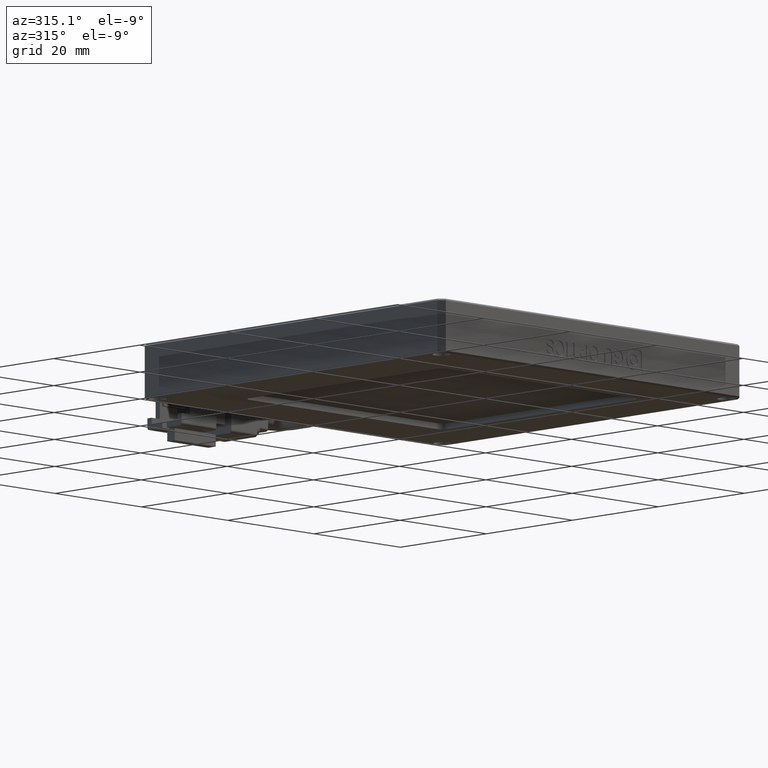
[diagram: clean part render]
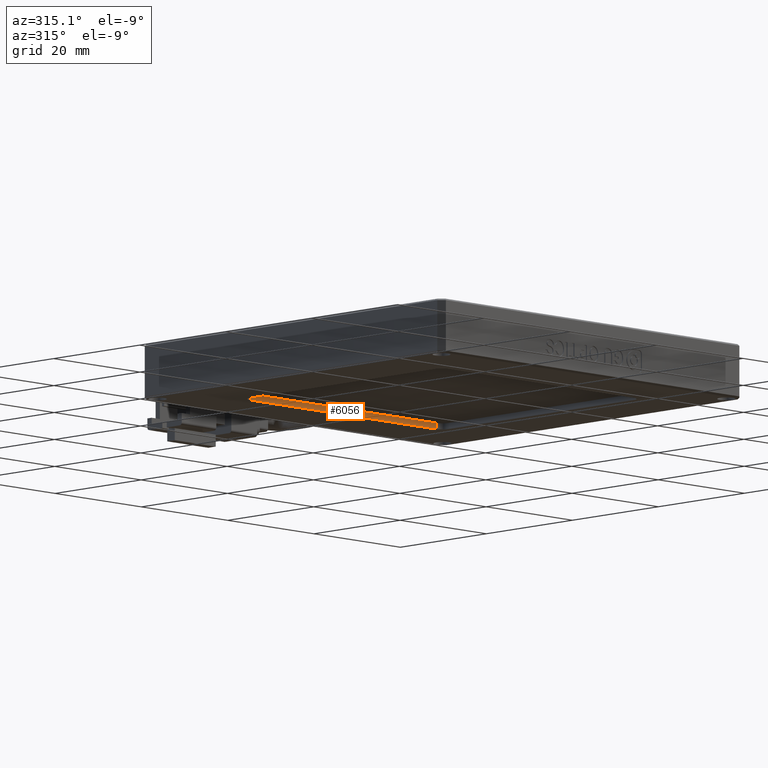
[diagram: same view with one face highlighted and labeled with its STEP entity id]
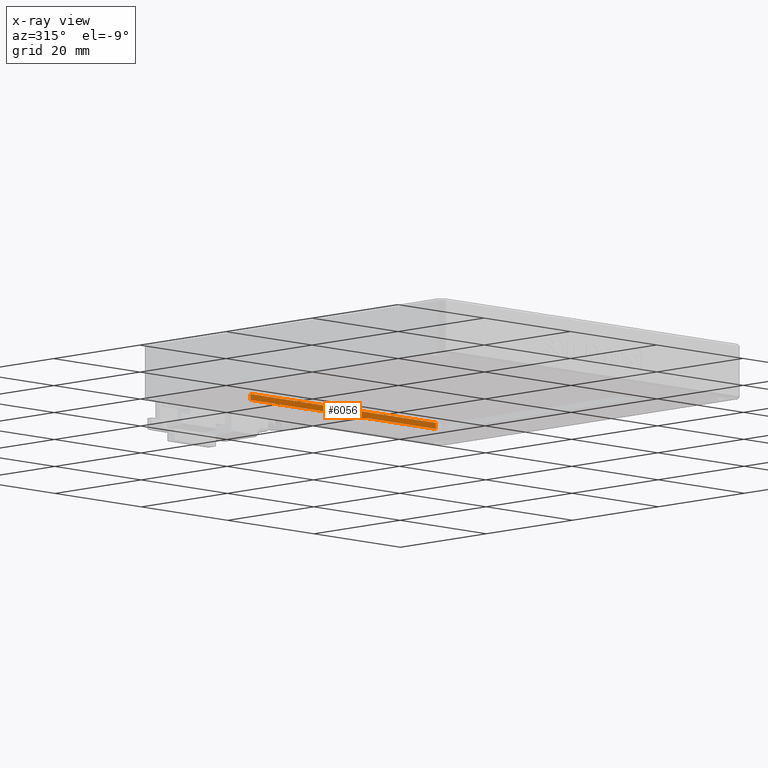
[diagram: x-ray of the same camera — body ghosted, the highlighted face saturated]
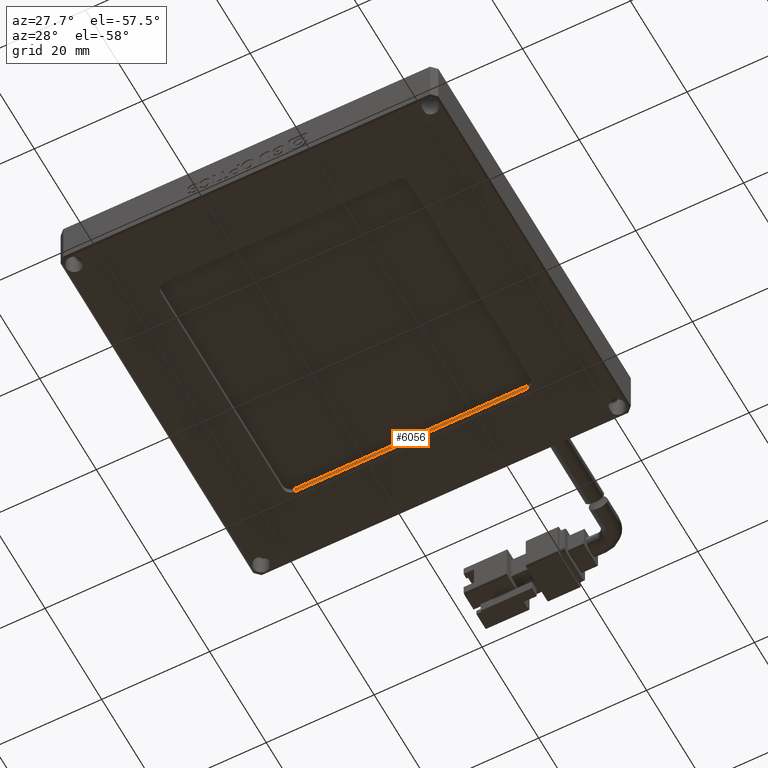
[diagram: same view with one face highlighted and labeled with its STEP entity id]
A machine part, auxiliary view. The second image highlights one B-rep face of the part: STEP entity #6056.
The next image is the same camera in x-ray: the body ghosted, the highlighted face saturated — about 0% of this face is hidden behind the body in this view.
A second angle (auxiliary view) of the same face is appended — the face is thin or edge-on in the first view.
In plain terms, the highlighted planar face has unit normal (-0, -1, 0).
Its self-contained STEP definition (entity closure, byte-faithful):
#1274 = CARTESIAN_POINT ( 'NONE',  ( 9.033692893401015700, 60.53591370558375200, 4.000000000000000000 ) ) ;
#2103 = CARTESIAN_POINT ( 'NONE',  ( -47.46630710659900400, 60.53591370558375200, -3.000000000000000000 ) ) ;
#2658 = LINE ( 'NONE', #1274, #16476 ) ;
#2870 = ORIENTED_EDGE ( 'NONE', *, *, #4557, .T. ) ;
#2968 = VECTOR ( 'NONE', #3297, 1000.000000000000000 ) ;
#2980 = CARTESIAN_POINT ( 'NONE',  ( -33.96630710659898300, 60.53591370558375200, -3.000000000000000000 ) ) ;
#3048 = AXIS2_PLACEMENT_3D ( 'NONE', #5128, #15113, #6552 ) ;
#3082 = VECTOR ( 'NONE', #12195, 1000.000000000000000 ) ;
#3297 = DIRECTION ( 'NONE',  ( -1.000000000000000000, 1.508455196501571400E-016, -0.0000000000000000000 ) ) ;
#3414 = LINE ( 'NONE', #14751, #2968 ) ;
#4557 = EDGE_CURVE ( 'NONE', #7965, #17578, #2658, .T. ) ;
#4642 = FACE_OUTER_BOUND ( 'NONE', #17633, .T. ) ;
#5128 = CARTESIAN_POINT ( 'NONE',  ( -35.46630710659898300, 60.53591370558375900, 4.000000000000000000 ) ) ;
#6056 = ADVANCED_FACE ( 'NONE', ( #4642 ), #17904, .T. ) ;
#6484 = EDGE_CURVE ( 'NONE', #7965, #9062, #14509, .T. ) ;
#6552 = DIRECTION ( 'NONE',  ( 1.000000000000000000, -1.508455196501571400E-016, 0.0000000000000000000 ) ) ;
#7855 = VECTOR ( 'NONE', #16184, 1000.000000000000000 ) ;
#7965 = VERTEX_POINT ( 'NONE', #16272 ) ;
#9062 = VERTEX_POINT ( 'NONE', #2980 ) ;
#9855 = DIRECTION ( 'NONE',  ( 0.0000000000000000000, 0.0000000000000000000, 1.000000000000000000 ) ) ;
#10198 = ORIENTED_EDGE ( 'NONE', *, *, #6484, .F. ) ;
#11718 = ORIENTED_EDGE ( 'NONE', *, *, #13348, .T. ) ;
#12136 = LINE ( 'NONE', #14802, #7855 ) ;
#12195 = DIRECTION ( 'NONE',  ( -1.000000000000000000, 0.0000000000000000000, -0.0000000000000000000 ) ) ;
#13348 = EDGE_CURVE ( 'NONE', #18039, #9062, #12136, .T. ) ;
#13556 = CARTESIAN_POINT ( 'NONE',  ( 9.033692893401015700, 60.53591370558375200, -2.000000000000000000 ) ) ;
#14509 = LINE ( 'NONE', #2103, #3082 ) ;
#14751 = CARTESIAN_POINT ( 'NONE',  ( -35.46630710659898300, 60.53591370558375900, -2.000000000000000000 ) ) ;
#14802 = CARTESIAN_POINT ( 'NONE',  ( -33.96630710659898300, 60.53591370558375900, 4.000000000000000000 ) ) ;
#15113 = DIRECTION ( 'NONE',  ( -1.508455196501571400E-016, -1.000000000000000000, 0.0000000000000000000 ) ) ;
#16184 = DIRECTION ( 'NONE',  ( -0.0000000000000000000, -0.0000000000000000000, -1.000000000000000000 ) ) ;
#16272 = CARTESIAN_POINT ( 'NONE',  ( 9.033692893401015700, 60.53591370558375200, -3.000000000000000000 ) ) ;
#16476 = VECTOR ( 'NONE', #9855, 1000.000000000000000 ) ;
#16919 = EDGE_CURVE ( 'NONE', #17578, #18039, #3414, .T. ) ;
#17224 = ORIENTED_EDGE ( 'NONE', *, *, #16919, .T. ) ;
#17578 = VERTEX_POINT ( 'NONE', #13556 ) ;
#17633 = EDGE_LOOP ( 'NONE', ( #17224, #11718, #10198, #2870 ) ) ;
#17769 = CARTESIAN_POINT ( 'NONE',  ( -33.96630710659898300, 60.53591370558375900, -2.000000000000000000 ) ) ;
#17904 = PLANE ( 'NONE',  #3048 ) ;
#18039 = VERTEX_POINT ( 'NONE', #17769 ) ;